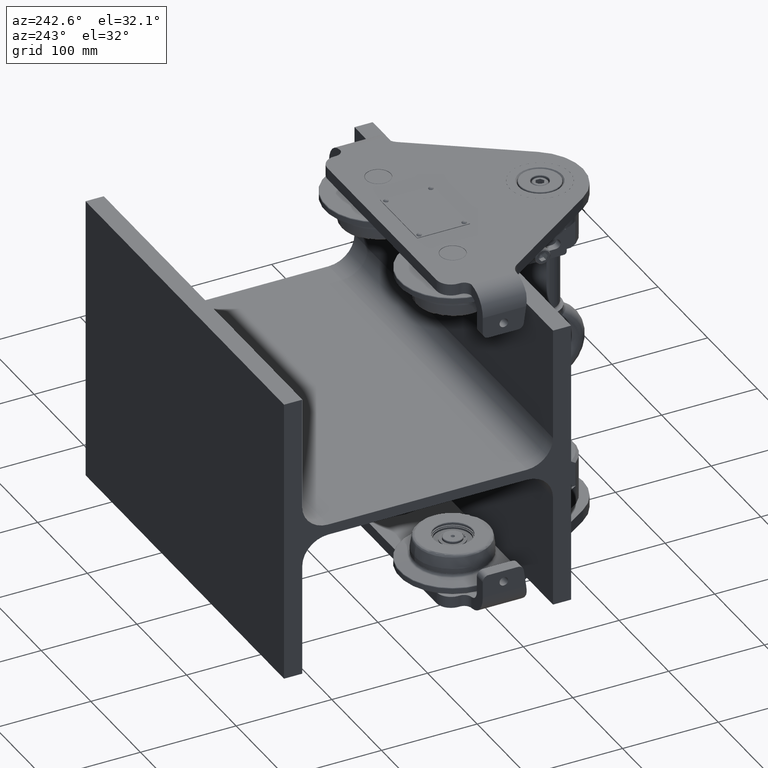
[diagram: clean part render]
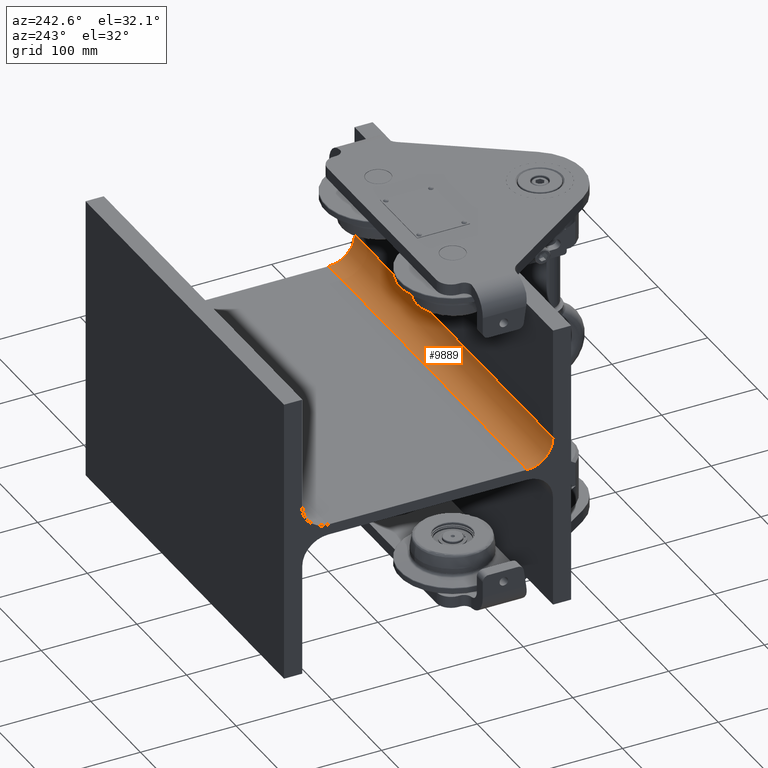
[diagram: same view with one face highlighted and labeled with its STEP entity id]
A machine part, auxiliary view. The second image highlights one B-rep face of the part: STEP entity #9889.
In plain terms, the highlighted cylindrical surface (edge-blend (fillet) strip) has radius 27 mm, axis along (-1, -0, -0).
Its self-contained STEP definition (entity closure, byte-faithful):
#1031 = CARTESIAN_POINT ( 'NONE',  ( 200.0000000000001100, -130.9999999999999700, 32.50000000000009200 ) ) ;
#1175 = EDGE_CURVE ( 'NONE', #40999, #23004, #4099, .T. ) ;
#4099 = LINE ( 'NONE', #41400, #38041 ) ;
#6911 = DIRECTION ( 'NONE',  ( -1.000000000000000000, -6.113781963198702100E-031, -4.634121278308743800E-016 ) ) ;
#7750 = EDGE_CURVE ( 'NONE', #26549, #38405, #27917, .T. ) ;
#8091 = CARTESIAN_POINT ( 'NONE',  ( 200.0000000000001100, -103.9999999999999900, 32.50000000000008500 ) ) ;
#8311 = VECTOR ( 'NONE', #42407, 1000.000000000000000 ) ;
#9889 = ADVANCED_FACE ( 'NONE', ( #37947 ), #16947, .F. ) ;
#13176 = CARTESIAN_POINT ( 'NONE',  ( 200.0000000000001100, -103.9999999999999900, 5.500000000000093300 ) ) ;
#16947 = CYLINDRICAL_SURFACE ( 'NONE', #22907, 26.99999999999999600 ) ;
#17459 = AXIS2_PLACEMENT_3D ( 'NONE', #8091, #49689, #53908 ) ;
#18929 = CARTESIAN_POINT ( 'NONE',  ( -200.0000000000000300, -130.9999999999999700, 32.49999999999990100 ) ) ;
#21314 = CARTESIAN_POINT ( 'NONE',  ( -200.0000000000000000, -103.9999999999999900, 5.499999999999907600 ) ) ;
#22527 = CIRCLE ( 'NONE', #28385, 26.99999999999999600 ) ;
#22907 = AXIS2_PLACEMENT_3D ( 'NONE', #44894, #48540, #28810 ) ;
#23004 = VERTEX_POINT ( 'NONE', #18929 ) ;
#24206 = CARTESIAN_POINT ( 'NONE',  ( 200.0000000000001100, -103.9999999999999900, 5.500000000000093300 ) ) ;
#26549 = VERTEX_POINT ( 'NONE', #24206 ) ;
#27917 = LINE ( 'NONE', #13176, #8311 ) ;
#28385 = AXIS2_PLACEMENT_3D ( 'NONE', #35842, #35279, #52583 ) ;
#28810 = DIRECTION ( 'NONE',  ( 0.0000000000000000000, 0.0000000000000000000, 1.000000000000000000 ) ) ;
#29201 = CIRCLE ( 'NONE', #17459, 26.99999999999999600 ) ;
#29523 = ORIENTED_EDGE ( 'NONE', *, *, #51780, .T. ) ;
#33727 = ORIENTED_EDGE ( 'NONE', *, *, #1175, .F. ) ;
#35279 = DIRECTION ( 'NONE',  ( 1.000000000000000000, 6.113781963198702100E-031, 4.634121278308743800E-016 ) ) ;
#35842 = CARTESIAN_POINT ( 'NONE',  ( -200.0000000000000300, -103.9999999999999900, 32.49999999999990100 ) ) ;
#37947 = FACE_OUTER_BOUND ( 'NONE', #44797, .T. ) ;
#38041 = VECTOR ( 'NONE', #6911, 1000.000000000000000 ) ;
#38405 = VERTEX_POINT ( 'NONE', #21314 ) ;
#40999 = VERTEX_POINT ( 'NONE', #1031 ) ;
#41400 = CARTESIAN_POINT ( 'NONE',  ( 200.0000000000001100, -130.9999999999999700, 32.50000000000009200 ) ) ;
#42407 = DIRECTION ( 'NONE',  ( -1.000000000000000000, -6.113781963198702100E-031, -4.634121278308743800E-016 ) ) ;
#44797 = EDGE_LOOP ( 'NONE', ( #50985, #33727, #29523, #52054 ) ) ;
#44894 = CARTESIAN_POINT ( 'NONE',  ( 200.0000000000001100, -103.9999999999999900, 32.50000000000008500 ) ) ;
#48540 = DIRECTION ( 'NONE',  ( -1.000000000000000000, -6.113781963198702100E-031, -4.634121278308743800E-016 ) ) ;
#49689 = DIRECTION ( 'NONE',  ( 1.000000000000000000, 6.113781963198702100E-031, 4.634121278308743800E-016 ) ) ;
#50985 = ORIENTED_EDGE ( 'NONE', *, *, #52107, .F. ) ;
#51780 = EDGE_CURVE ( 'NONE', #40999, #26549, #29201, .T. ) ;
#52054 = ORIENTED_EDGE ( 'NONE', *, *, #7750, .T. ) ;
#52107 = EDGE_CURVE ( 'NONE', #23004, #38405, #22527, .T. ) ;
#52583 = DIRECTION ( 'NONE',  ( 0.0000000000000000000, 0.0000000000000000000, -1.000000000000000000 ) ) ;
#53908 = DIRECTION ( 'NONE',  ( 0.0000000000000000000, 0.0000000000000000000, -1.000000000000000000 ) ) ;